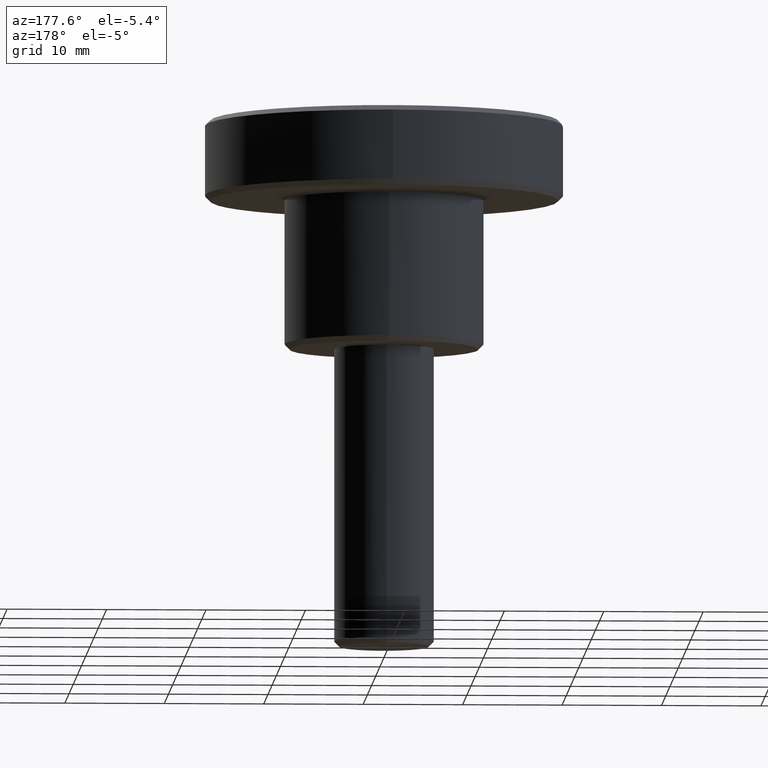
[diagram: clean part render]
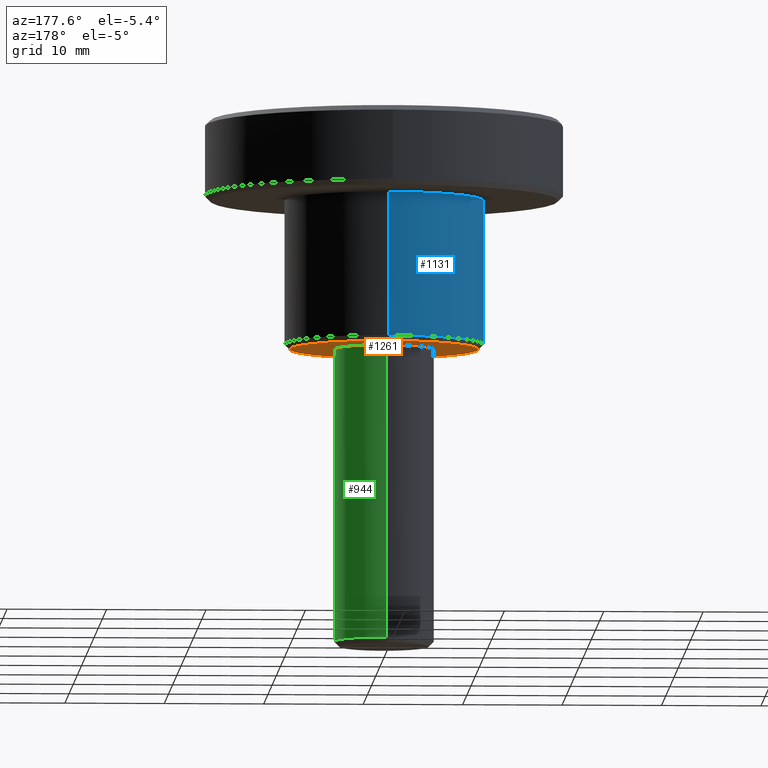
[diagram: same view with three faces highlighted in distinct colors, each labeled with its STEP entity id]
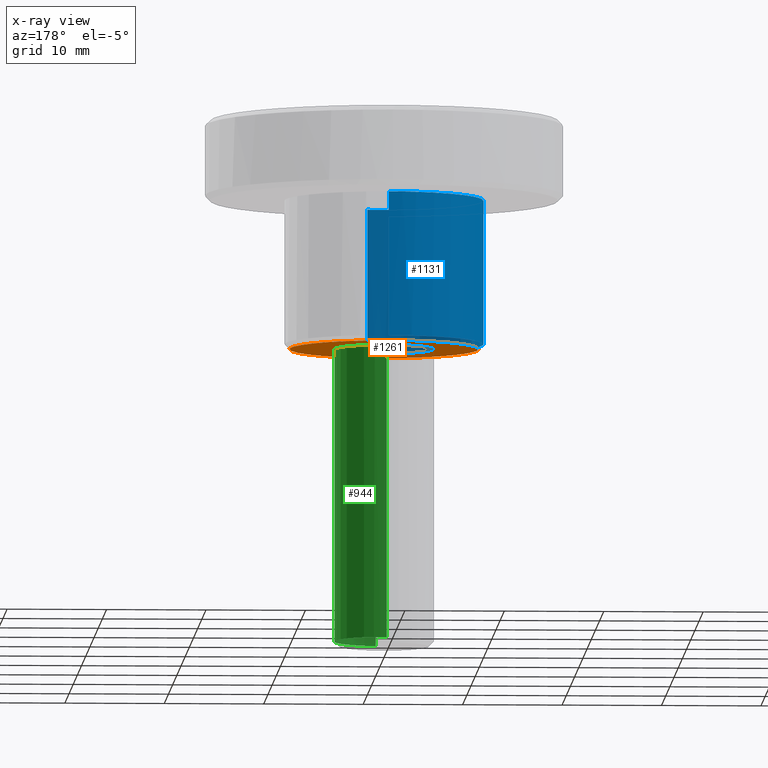
[diagram: x-ray of the same camera — body ghosted, the three highlighted faces saturated]
A machine part, auxiliary view with three faces highlighted in distinct colors.
The next image is the same camera in x-ray (body ghosted, the three faces saturated) — at least one of them is partly hidden behind the body in this view.
Their STEP definitions:

[orange] entity #1261 — the highlighted face is a freeform B-spline surface patch.
#718=CARTESIAN_POINT('',(-3.840046603896163,-8.689306190940943,1.003257E-012));
#719=VERTEX_POINT('',#718);
#725=CARTESIAN_POINT('',(9.500000000000000,0.0,0.0));
#726=VERTEX_POINT('',#725);
#727=CARTESIAN_POINT('',(9.500000000000000,0.0,0.0));
#728=CARTESIAN_POINT('',(9.500000000000000,-9.500000000000000,0.0));
#729=CARTESIAN_POINT('',(0.0,-9.500000000000000,0.0));
#730=CARTESIAN_POINT('',(-2.005598363905397,-9.499999999999998,0.0));
#731=CARTESIAN_POINT('',(-3.840046603896162,-8.689306190940943,1.003257E-012));
#739=(BOUNDED_CURVE()B_SPLINE_CURVE(2,(#727,#728,#729,#730,#731),.UNSPECIFIED.,.F.,.U.)B_SPLINE_CURVE_WITH_KNOTS((3,2,3),(0.500000000000000,0.750000000000000,0.818638421540460),.UNSPECIFIED.)CURVE()GEOMETRIC_REPRESENTATION_ITEM()RATIONAL_B_SPLINE_CURVE((1.0,0.707106781186548,1.0,0.919585087122960,0.883326595751469))REPRESENTATION_ITEM(''));
#740=EDGE_CURVE('',#726,#719,#739,.T.);
#742=CARTESIAN_POINT('',(-0.082902087239416,9.499638269110243,6.592773E-013));
#743=VERTEX_POINT('',#742);
#744=CARTESIAN_POINT('',(-0.082902087239416,9.499638269110243,6.592773E-013));
#745=CARTESIAN_POINT('',(-0.041451832801524,9.500000000000000,0.0));
#746=CARTESIAN_POINT('',(0.0,9.500000000000000,0.0));
#747=CARTESIAN_POINT('',(9.500000000000000,9.500000000000000,0.0));
#748=CARTESIAN_POINT('',(9.500000000000000,0.0,0.0));
#756=(BOUNDED_CURVE()B_SPLINE_CURVE(2,(#744,#745,#746,#747,#748),.UNSPECIFIED.,.F.,.U.)B_SPLINE_CURVE_WITH_KNOTS((3,2,3),(0.248460105664833,0.250000000000000,0.500000000000000),.UNSPECIFIED.)CURVE()GEOMETRIC_REPRESENTATION_ITEM()RATIONAL_B_SPLINE_CURVE((0.996414028099989,0.998195901566161,1.0,0.707106781186548,1.0))REPRESENTATION_ITEM(''));
#757=EDGE_CURVE('',#743,#726,#756,.T.);
#846=CARTESIAN_POINT('',(-9.500000000000000,0.0,0.0));
#847=VERTEX_POINT('',#846);
#848=CARTESIAN_POINT('',(-9.500000000000000,0.0,0.0));
#849=CARTESIAN_POINT('',(-9.500000000000000,9.417456500642663,0.0));
#850=CARTESIAN_POINT('',(-0.082902087239416,9.499638269110243,6.592773E-013));
#858=(BOUNDED_CURVE()B_SPLINE_CURVE(2,(#848,#849,#850),.UNSPECIFIED.,.F.,.U.)B_SPLINE_CURVE_WITH_KNOTS((3,3),(0.0,0.248460105664833),.UNSPECIFIED.)CURVE()GEOMETRIC_REPRESENTATION_ITEM()RATIONAL_B_SPLINE_CURVE((1.0,0.708910879620386,0.996414028099989))REPRESENTATION_ITEM(''));
#859=EDGE_CURVE('',#847,#743,#858,.T.);
#861=CARTESIAN_POINT('',(-3.840046603896163,-8.689306190940943,1.003257E-012));
#862=CARTESIAN_POINT('',(-9.500000000000000,-6.188015024603399,0.0));
#863=CARTESIAN_POINT('',(-9.500000000000000,0.0,0.0));
#871=(BOUNDED_CURVE()B_SPLINE_CURVE(2,(#861,#862,#863),.UNSPECIFIED.,.F.,.U.)B_SPLINE_CURVE_WITH_KNOTS((3,3),(0.818638421540460,1.0),.UNSPECIFIED.)CURVE()GEOMETRIC_REPRESENTATION_ITEM()RATIONAL_B_SPLINE_CURVE((0.883326595751470,0.787521694063587,1.0))REPRESENTATION_ITEM(''));
#872=EDGE_CURVE('',#719,#847,#871,.T.);
#898=CARTESIAN_POINT('',(-0.043632677526493,4.999809615320553,4.440892E-016));
#899=VERTEX_POINT('',#898);
#905=CARTESIAN_POINT('',(5.0,0.0,0.0));
#906=VERTEX_POINT('',#905);
#907=CARTESIAN_POINT('',(-0.043632677526493,4.999809615320553,4.440892E-016));
#908=CARTESIAN_POINT('',(-0.021816754138134,5.0,0.0));
#909=CARTESIAN_POINT('',(0.0,5.0,0.0));
#910=CARTESIAN_POINT('',(5.000000000000001,5.000000000000001,0.0));
#911=CARTESIAN_POINT('',(5.0,0.0,0.0));
#919=(BOUNDED_CURVE()B_SPLINE_CURVE(2,(#907,#908,#909,#910,#911),.UNSPECIFIED.,.F.,.U.)B_SPLINE_CURVE_WITH_KNOTS((3,2,3),(0.248460105662573,0.250000000000000,0.500000000000000),.UNSPECIFIED.)CURVE()GEOMETRIC_REPRESENTATION_ITEM()RATIONAL_B_SPLINE_CURVE((0.996414028094760,0.998195901563514,1.0,0.707106781186548,1.0))REPRESENTATION_ITEM(''));
#920=EDGE_CURVE('',#899,#906,#919,.T.);
#922=CARTESIAN_POINT('',(0.620640010433045,-4.961331069123453,4.640983E-016));
#923=VERTEX_POINT('',#922);
#924=CARTESIAN_POINT('',(5.0,0.0,0.0));
#925=CARTESIAN_POINT('',(4.999999999999999,-4.413493000690393,0.0));
#926=CARTESIAN_POINT('',(0.620640010433045,-4.961331069123453,4.640983E-016));
#934=(BOUNDED_CURVE()B_SPLINE_CURVE(2,(#924,#925,#926),.UNSPECIFIED.,.F.,.U.)B_SPLINE_CURVE_WITH_KNOTS((3,3),(0.500000000000000,0.728526071026995),.UNSPECIFIED.)CURVE()GEOMETRIC_REPRESENTATION_ITEM()RATIONAL_B_SPLINE_CURVE((1.0,0.732265053896447,0.954005430270249))REPRESENTATION_ITEM(''));
#935=EDGE_CURVE('',#906,#923,#934,.T.);
#970=CARTESIAN_POINT('',(-5.0,0.0,0.0));
#971=VERTEX_POINT('',#970);
#972=CARTESIAN_POINT('',(0.620640010433045,-4.961331069123453,4.640983E-016));
#973=CARTESIAN_POINT('',(0.311524637701766,-5.0,0.0));
#974=CARTESIAN_POINT('',(0.0,-5.0,0.0));
#975=CARTESIAN_POINT('',(-5.000000000000001,-5.000000000000001,0.0));
#976=CARTESIAN_POINT('',(-5.0,0.0,0.0));
#984=(BOUNDED_CURVE()B_SPLINE_CURVE(2,(#972,#973,#974,#975,#976),.UNSPECIFIED.,.F.,.U.)B_SPLINE_CURVE_WITH_KNOTS((3,2,3),(0.728526071026994,0.750000000000000,1.0),.UNSPECIFIED.)CURVE()GEOMETRIC_REPRESENTATION_ITEM()RATIONAL_B_SPLINE_CURVE((0.954005430270247,0.974841727290100,1.0,0.707106781186548,1.0))REPRESENTATION_ITEM(''));
#985=EDGE_CURVE('',#923,#971,#984,.T.);
#987=CARTESIAN_POINT('',(-5.0,0.0,0.0));
#988=CARTESIAN_POINT('',(-5.000000000000001,4.956556052906242,0.0));
#989=CARTESIAN_POINT('',(-0.043632677526493,4.999809615320554,4.440892E-016));
#997=(BOUNDED_CURVE()B_SPLINE_CURVE(2,(#987,#988,#989),.UNSPECIFIED.,.F.,.U.)B_SPLINE_CURVE_WITH_KNOTS((3,3),(0.0,0.248460105662573),.UNSPECIFIED.)CURVE()GEOMETRIC_REPRESENTATION_ITEM()RATIONAL_B_SPLINE_CURVE((1.0,0.708910879623034,0.996414028094760))REPRESENTATION_ITEM(''));
#998=EDGE_CURVE('',#971,#899,#997,.T.);
#1244=CARTESIAN_POINT('',(-10.449049963174311,10.448587236552520,0.0));
#1245=CARTESIAN_POINT('',(10.449050472794029,10.448587236552520,0.0));
#1246=CARTESIAN_POINT('',(-10.449049963174311,-10.447280231862340,0.0));
#1247=CARTESIAN_POINT('',(10.449050472794029,-10.447280231862340,0.0));
#1248=B_SPLINE_SURFACE_WITH_KNOTS('',1,1,((#1244,#1246),(#1245,#1247)),.UNSPECIFIED.,.F.,.F.,.U.,(2,2),(2,2),(0.0,20.898100435968342),(0.0,20.895867468414860),.UNSPECIFIED.);
#1249=ORIENTED_EDGE('',*,*,#859,.T.);
#1250=ORIENTED_EDGE('',*,*,#757,.T.);
#1251=ORIENTED_EDGE('',*,*,#740,.T.);
#1252=ORIENTED_EDGE('',*,*,#872,.T.);
#1253=EDGE_LOOP('',(#1249,#1250,#1251,#1252));
#1254=FACE_OUTER_BOUND('',#1253,.T.);
#1255=ORIENTED_EDGE('',*,*,#998,.F.);
#1256=ORIENTED_EDGE('',*,*,#985,.F.);
#1257=ORIENTED_EDGE('',*,*,#935,.F.);
#1258=ORIENTED_EDGE('',*,*,#920,.F.);
#1259=EDGE_LOOP('',(#1255,#1256,#1257,#1258));
#1260=FACE_BOUND('',#1259,.T.);
#1261=ADVANCED_FACE('',(#1254,#1260),#1248,.T.);

[blue] entity #1131 — the highlighted face is a freeform B-spline surface patch.
#699=CARTESIAN_POINT('',(-4.042154319892600,-9.146638095726653,0.500000000001170));
#700=VERTEX_POINT('',#699);
#701=CARTESIAN_POINT('',(1.241268920902600,-9.922663526789375,0.499999999999926));
#702=VERTEX_POINT('',#701);
#703=CARTESIAN_POINT('',(-4.042154319892600,-9.146638095726653,0.500000000001170));
#704=CARTESIAN_POINT('',(-2.111156172534079,-9.999999999999998,0.499999999999945));
#705=CARTESIAN_POINT('',(0.0,-10.0,0.499999999999945));
#706=CARTESIAN_POINT('',(0.623043660419147,-10.0,0.499999999999945));
#707=CARTESIAN_POINT('',(1.241268920902600,-9.922663526789375,0.499999999999926));
#715=(BOUNDED_CURVE()B_SPLINE_CURVE(2,(#703,#704,#705,#706,#707),.UNSPECIFIED.,.F.,.U.)B_SPLINE_CURVE_WITH_KNOTS((3,2,3),(0.181361578459477,0.250000000000000,0.271473740316460),.UNSPECIFIED.)CURVE()GEOMETRIC_REPRESENTATION_ITEM()RATIONAL_B_SPLINE_CURVE((0.883326595751403,0.919585087122887,1.0,0.974841948314992,0.954005796379999))REPRESENTATION_ITEM(''));
#716=EDGE_CURVE('',#700,#702,#715,.T.);
#759=CARTESIAN_POINT('',(-0.087263377980344,9.999619247893588,0.499999999999562));
#760=VERTEX_POINT('',#759);
#817=CARTESIAN_POINT('',(-10.0,0.0,0.499999999999945));
#818=VERTEX_POINT('',#817);
#819=CARTESIAN_POINT('',(-10.0,0.0,0.499999999999945));
#820=CARTESIAN_POINT('',(-9.999999999999998,-6.513700025895460,0.499999999999945));
#821=CARTESIAN_POINT('',(-4.042154319892600,-9.146638095726653,0.500000000001170));
#829=(BOUNDED_CURVE()B_SPLINE_CURVE(2,(#819,#820,#821),.UNSPECIFIED.,.F.,.U.)B_SPLINE_CURVE_WITH_KNOTS((3,3),(0.0,0.181361578459477),.UNSPECIFIED.)CURVE()GEOMETRIC_REPRESENTATION_ITEM()RATIONAL_B_SPLINE_CURVE((1.0,0.787521694063661,0.883326595751403))REPRESENTATION_ITEM(''));
#830=EDGE_CURVE('',#818,#700,#829,.T.);
#832=CARTESIAN_POINT('',(-0.087263377980344,9.999619247893588,0.499999999999562));
#833=CARTESIAN_POINT('',(-10.000000000000002,9.913114065924850,0.499999999999945));
#834=CARTESIAN_POINT('',(-10.0,0.0,0.499999999999945));
#842=(BOUNDED_CURVE()B_SPLINE_CURVE(2,(#832,#833,#834),.UNSPECIFIED.,.F.,.U.)B_SPLINE_CURVE_WITH_KNOTS((3,3),(0.751539859510173,1.0),.UNSPECIFIED.)CURVE()GEOMETRIC_REPRESENTATION_ITEM()RATIONAL_B_SPLINE_CURVE((0.996414108694795,0.708910838820367,1.0))REPRESENTATION_ITEM(''));
#843=EDGE_CURVE('',#760,#818,#842,.T.);
#1025=CARTESIAN_POINT('',(-0.087260410257128,9.999619273791241,15.0));
#1026=VERTEX_POINT('',#1025);
#1027=CARTESIAN_POINT('',(-0.087263377980344,9.999619247893588,0.499999999999562));
#1028=CARTESIAN_POINT('',(-0.087260410257128,9.999619273791241,15.0));
#1029=QUASI_UNIFORM_CURVE('',1,(#1027,#1028),.UNSPECIFIED.,.F.,.U.);
#1030=EDGE_CURVE('',#760,#1026,#1029,.T.);
#1049=CARTESIAN_POINT('',(1.241276359630158,-9.922662596249541,15.0));
#1050=VERTEX_POINT('',#1049);
#1064=CARTESIAN_POINT('',(1.241268920902600,-9.922663526789375,0.499999999999926));
#1065=CARTESIAN_POINT('',(1.241276359630158,-9.922662596249541,15.0));
#1066=QUASI_UNIFORM_CURVE('',1,(#1064,#1065),.UNSPECIFIED.,.F.,.U.);
#1067=EDGE_CURVE('',#702,#1050,#1066,.T.);
#1072=CARTESIAN_POINT('',(-0.087265354983739,9.999619230641709,0.137499999999943));
#1073=CARTESIAN_POINT('',(-10.086884585625448,9.912353875657971,0.137499999999943));
#1074=CARTESIAN_POINT('',(-9.999619230641709,-0.087265354983739,0.137499999999943));
#1075=CARTESIAN_POINT('',(-9.912353875657971,-10.086884585625448,0.137499999999943));
#1076=CARTESIAN_POINT('',(0.087265354983739,-9.999619230641709,0.137499999999943));
#1077=CARTESIAN_POINT('',(0.666501589581736,-9.994564312602755,0.137499999999943));
#1078=CARTESIAN_POINT('',(1.241280020798293,-9.922662138255385,0.137499999999943));
#1079=CARTESIAN_POINT('',(-0.087265354983739,9.999619230641709,15.371562500000000));
#1080=CARTESIAN_POINT('',(-10.086884585625448,9.912353875657971,15.371562500000001));
#1081=CARTESIAN_POINT('',(-9.999619230641709,-0.087265354983739,15.371562500000000));
#1082=CARTESIAN_POINT('',(-9.912353875657971,-10.086884585625448,15.371562500000001));
#1083=CARTESIAN_POINT('',(0.087265354983739,-9.999619230641709,15.371562500000000));
#1084=CARTESIAN_POINT('',(0.666501589581736,-9.994564312602755,15.371562500000001));
#1085=CARTESIAN_POINT('',(1.241280020798293,-9.922662138255385,15.371562500000005));
#1093=(BOUNDED_SURFACE()B_SPLINE_SURFACE(2,1,((#1072,#1079),(#1073,#1080),(#1074,#1081),(#1075,#1082),(#1076,#1083),(#1077,#1084),(#1078,#1085)),.UNSPECIFIED.,.F.,.F.,.U.)B_SPLINE_SURFACE_WITH_KNOTS((3,2,2,3),(2,2),(0.0,16.568542494923800,33.137084989847587,34.462568389441500),(0.0,15.234062500000061),.UNSPECIFIED.)GEOMETRIC_REPRESENTATION_ITEM()RATIONAL_B_SPLINE_SURFACE(((1.0,1.0),(0.707106781186548,0.707106781186548),(1.0,1.0),(0.707106781186548,0.707106781186548),(1.0,1.0),(0.976568542494924,0.976568542494924),(0.956886118190660,0.956886118190660)))REPRESENTATION_ITEM('')SURFACE());
#1094=ORIENTED_EDGE('',*,*,#830,.T.);
#1095=ORIENTED_EDGE('',*,*,#716,.T.);
#1096=ORIENTED_EDGE('',*,*,#1067,.T.);
#1097=CARTESIAN_POINT('',(-10.0,0.0,15.0));
#1098=VERTEX_POINT('',#1097);
#1099=CARTESIAN_POINT('',(1.241276359630158,-9.922662596249541,15.000000000000002));
#1100=CARTESIAN_POINT('',(0.623047423321757,-9.999999999999998,14.999999999999998));
#1101=CARTESIAN_POINT('',(0.0,-10.0,15.0));
#1102=CARTESIAN_POINT('',(-10.000000000000002,-10.000000000000002,14.999999999999995));
#1103=CARTESIAN_POINT('',(-10.0,0.0,15.0));
#1111=(BOUNDED_CURVE()B_SPLINE_CURVE(2,(#1099,#1100,#1101,#1102,#1103),.UNSPECIFIED.,.F.,.U.)B_SPLINE_CURVE_WITH_KNOTS((3,2,3),(0.728526133254647,0.750000000000000,1.0),.UNSPECIFIED.)CURVE()GEOMETRIC_REPRESENTATION_ITEM()RATIONAL_B_SPLINE_CURVE((0.954005551030099,0.974841800194330,1.0,0.707106781186548,1.0))REPRESENTATION_ITEM(''));
#1112=EDGE_CURVE('',#1050,#1098,#1111,.T.);
#1113=ORIENTED_EDGE('',*,*,#1112,.T.);
#1114=CARTESIAN_POINT('',(-10.0,0.0,15.0));
#1115=CARTESIAN_POINT('',(-10.0,9.913117008087193,15.0));
#1116=CARTESIAN_POINT('',(-0.087260410257128,9.999619273791241,14.999999999999998));
#1124=(BOUNDED_CURVE()B_SPLINE_CURVE(2,(#1114,#1115,#1116),.UNSPECIFIED.,.F.,.U.)B_SPLINE_CURVE_WITH_KNOTS((3,3),(0.0,0.248460192766126),.UNSPECIFIED.)CURVE()GEOMETRIC_REPRESENTATION_ITEM()RATIONAL_B_SPLINE_CURVE((1.0,0.708910777574873,0.996414229676857))REPRESENTATION_ITEM(''));
#1125=EDGE_CURVE('',#1098,#1026,#1124,.T.);
#1126=ORIENTED_EDGE('',*,*,#1125,.T.);
#1127=ORIENTED_EDGE('',*,*,#1030,.F.);
#1128=ORIENTED_EDGE('',*,*,#843,.T.);
#1129=EDGE_LOOP('',(#1094,#1095,#1096,#1113,#1126,#1127,#1128));
#1130=FACE_OUTER_BOUND('',#1129,.T.);
#1131=ADVANCED_FACE('',(#1130),#1093,.T.);

[green] entity #944 — the highlighted face is a freeform B-spline surface patch.
#68=CARTESIAN_POINT('',(0.620640010450138,-4.961331069121314,-29.500000000000000));
#69=VERTEX_POINT('',#68);
#126=CARTESIAN_POINT('',(-0.043632677512376,4.999809615320641,-29.500000000000011));
#127=VERTEX_POINT('',#126);
#133=CARTESIAN_POINT('',(5.0,0.0,-29.500000000000000));
#134=VERTEX_POINT('',#133);
#135=CARTESIAN_POINT('',(5.0,0.0,-29.500000000000000));
#136=CARTESIAN_POINT('',(5.000000000000001,5.000000000000001,-29.499999999999996));
#137=CARTESIAN_POINT('',(0.0,5.0,-29.500000000000000));
#138=CARTESIAN_POINT('',(-0.021816754144535,5.000000000000001,-29.499999999999996));
#139=CARTESIAN_POINT('',(-0.043632677512376,4.999809615320641,-29.500000000000014));
#147=(BOUNDED_CURVE()B_SPLINE_CURVE(2,(#135,#136,#137,#138,#139),.UNSPECIFIED.,.F.,.U.)B_SPLINE_CURVE_WITH_KNOTS((3,2,3),(0.500000000000000,0.750000000000000,0.751539894337878),.UNSPECIFIED.)CURVE()GEOMETRIC_REPRESENTATION_ITEM()RATIONAL_B_SPLINE_CURVE((1.0,0.707106781186548,1.0,0.998195901562986,0.996414028093716))REPRESENTATION_ITEM(''));
#148=EDGE_CURVE('',#134,#127,#147,.T.);
#150=CARTESIAN_POINT('',(0.620640010450138,-4.961331069121314,-29.499999999999996));
#151=CARTESIAN_POINT('',(5.000000000000001,-4.413493000659715,-29.500000000000000));
#152=CARTESIAN_POINT('',(5.0,0.0,-29.500000000000000));
#160=(BOUNDED_CURVE()B_SPLINE_CURVE(2,(#150,#151,#152),.UNSPECIFIED.,.F.,.U.)B_SPLINE_CURVE_WITH_KNOTS((3,3),(0.271473928974168,0.500000000000000),.UNSPECIFIED.)CURVE()GEOMETRIC_REPRESENTATION_ITEM()RATIONAL_B_SPLINE_CURVE((0.954005430267991,0.732265053897809,1.0))REPRESENTATION_ITEM(''));
#161=EDGE_CURVE('',#69,#134,#160,.T.);
#878=CARTESIAN_POINT('',(0.620640010399146,-4.961331069127693,-30.237500000000004));
#879=CARTESIAN_POINT('',(5.038664152512223,-4.408656290666105,-30.237500000000008));
#880=CARTESIAN_POINT('',(4.999809615320855,0.043632677491869,-30.237500000000001));
#881=CARTESIAN_POINT('',(4.956176937828985,5.043442292812725,-30.237499999999997));
#882=CARTESIAN_POINT('',(-0.043632677491869,4.999809615320855,-30.237500000000001));
#883=CARTESIAN_POINT('',(0.620640010399146,-4.961331069127693,0.755937500000002));
#884=CARTESIAN_POINT('',(5.038664152512223,-4.408656290666105,0.755937500000002));
#885=CARTESIAN_POINT('',(4.999809615320855,0.043632677491869,0.755937500000002));
#886=CARTESIAN_POINT('',(4.956176937828985,5.043442292812725,0.755937500000002));
#887=CARTESIAN_POINT('',(-0.043632677491869,4.999809615320855,0.755937500000002));
#895=(BOUNDED_SURFACE()B_SPLINE_SURFACE(2,1,((#878,#883),(#879,#884),(#880,#885),(#881,#886),(#882,#887)),.UNSPECIFIED.,.F.,.F.,.U.)B_SPLINE_SURFACE_WITH_KNOTS((3,2,3),(2,2),(0.0,7.621529547664946,15.905800795126851),(0.0,30.993437500000010),.UNSPECIFIED.)GEOMETRIC_REPRESENTATION_ITEM()RATIONAL_B_SPLINE_SURFACE(((0.956886118190660,0.956886118190660),(0.730538238691624,0.730538238691624),(1.0,1.0),(0.707106781186548,0.707106781186548),(1.0,1.0)))REPRESENTATION_ITEM('')SURFACE());
#896=ORIENTED_EDGE('',*,*,#161,.T.);
#897=ORIENTED_EDGE('',*,*,#148,.T.);
#898=CARTESIAN_POINT('',(-0.043632677526493,4.999809615320553,4.440892E-016));
#899=VERTEX_POINT('',#898);
#900=CARTESIAN_POINT('',(-0.043632677512376,4.999809615320641,-29.500000000000011));
#901=CARTESIAN_POINT('',(-0.043632677526493,4.999809615320553,4.440892E-016));
#902=QUASI_UNIFORM_CURVE('',1,(#900,#901),.UNSPECIFIED.,.F.,.U.);
#903=EDGE_CURVE('',#127,#899,#902,.T.);
#904=ORIENTED_EDGE('',*,*,#903,.T.);
#905=CARTESIAN_POINT('',(5.0,0.0,0.0));
#906=VERTEX_POINT('',#905);
#907=CARTESIAN_POINT('',(-0.043632677526493,4.999809615320553,4.440892E-016));
#908=CARTESIAN_POINT('',(-0.021816754138134,5.0,0.0));
#909=CARTESIAN_POINT('',(0.0,5.0,0.0));
#910=CARTESIAN_POINT('',(5.000000000000001,5.000000000000001,0.0));
#911=CARTESIAN_POINT('',(5.0,0.0,0.0));
#919=(BOUNDED_CURVE()B_SPLINE_CURVE(2,(#907,#908,#909,#910,#911),.UNSPECIFIED.,.F.,.U.)B_SPLINE_CURVE_WITH_KNOTS((3,2,3),(0.248460105662573,0.250000000000000,0.500000000000000),.UNSPECIFIED.)CURVE()GEOMETRIC_REPRESENTATION_ITEM()RATIONAL_B_SPLINE_CURVE((0.996414028094760,0.998195901563514,1.0,0.707106781186548,1.0))REPRESENTATION_ITEM(''));
#920=EDGE_CURVE('',#899,#906,#919,.T.);
#921=ORIENTED_EDGE('',*,*,#920,.T.);
#922=CARTESIAN_POINT('',(0.620640010433045,-4.961331069123453,4.640983E-016));
#923=VERTEX_POINT('',#922);
#924=CARTESIAN_POINT('',(5.0,0.0,0.0));
#925=CARTESIAN_POINT('',(4.999999999999999,-4.413493000690393,0.0));
#926=CARTESIAN_POINT('',(0.620640010433045,-4.961331069123453,4.640983E-016));
#934=(BOUNDED_CURVE()B_SPLINE_CURVE(2,(#924,#925,#926),.UNSPECIFIED.,.F.,.U.)B_SPLINE_CURVE_WITH_KNOTS((3,3),(0.500000000000000,0.728526071026995),.UNSPECIFIED.)CURVE()GEOMETRIC_REPRESENTATION_ITEM()RATIONAL_B_SPLINE_CURVE((1.0,0.732265053896447,0.954005430270249))REPRESENTATION_ITEM(''));
#935=EDGE_CURVE('',#906,#923,#934,.T.);
#936=ORIENTED_EDGE('',*,*,#935,.T.);
#937=CARTESIAN_POINT('',(0.620640010450138,-4.961331069121314,-29.500000000000000));
#938=CARTESIAN_POINT('',(0.620640010433045,-4.961331069123453,4.640983E-016));
#939=QUASI_UNIFORM_CURVE('',1,(#937,#938),.UNSPECIFIED.,.F.,.U.);
#940=EDGE_CURVE('',#69,#923,#939,.T.);
#941=ORIENTED_EDGE('',*,*,#940,.F.);
#942=EDGE_LOOP('',(#896,#897,#904,#921,#936,#941));
#943=FACE_OUTER_BOUND('',#942,.T.);
#944=ADVANCED_FACE('',(#943),#895,.T.);